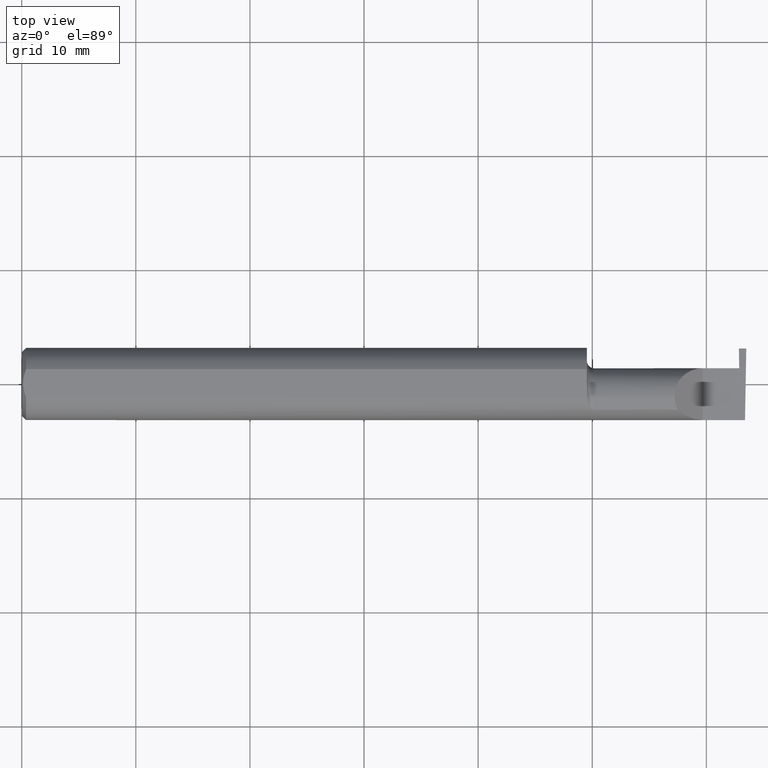
[diagram: clean part render]
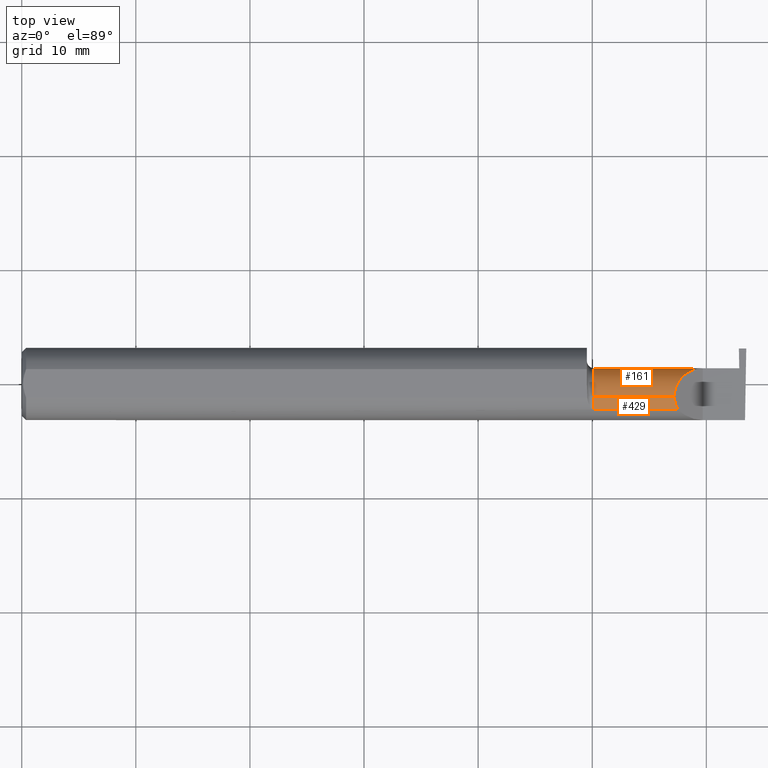
[diagram: same view with one multi-face feature highlighted, each face labeled with its STEP entity id]
A machine part, top view. The highlighted faces form ONE feature: a constant-radius fillet chain: 2 tangent blend faces with common blend radius 2.4892 mm. The faces share edges in the B-rep.
Their STEP definitions:
[1] entity #429 (Cylinder):
#8 = EDGE_CURVE ( 'NONE', #333, #769, #682, .T. ) ;
#13 = EDGE_CURVE ( 'NONE', #578, #333, #172, .T. ) ;
#23 = CARTESIAN_POINT ( 'NONE',  ( 2.263628075281542529, -0.09015216647662421812, 0.08637192471845822617 ) ) ;
#68 = VERTEX_POINT ( 'NONE', #767 ) ;
#108 = EDGE_LOOP ( 'NONE', ( #732, #601, #126, #434 ) ) ;
#126 = ORIENTED_EDGE ( 'NONE', *, *, #622, .F. ) ;
#142 = AXIS2_PLACEMENT_3D ( 'NONE', #439, #443, #683 ) ;
#143 = CARTESIAN_POINT ( 'NONE',  ( 2.252000000000000668, -0.06008937020638503712, 0.09799999999999998990 ) ) ;
#144 = CARTESIAN_POINT ( 'NONE',  ( 1.974999999999999867, -0.04385000000000001397, 0.09800000000000000377 ) ) ;
#156 = CARTESIAN_POINT ( 'NONE',  ( 2.263628075281542529, -0.09015216647662421812, 0.08637192471845822617 ) ) ;
#168 = CARTESIAN_POINT ( 'NONE',  ( 2.224749999999999783, -0.09015216647662482874, 0.08637192471845768493 ) ) ;
#169 = AXIS2_PLACEMENT_3D ( 'NONE', #179, #308, #671 ) ;
#172 =( BOUNDED_CURVE ( )  B_SPLINE_CURVE ( 3, ( #23, #750, #143, #387 ),
 .UNSPECIFIED., .F., .T. ) 
 B_SPLINE_CURVE_WITH_KNOTS ( ( 4, 4 ),
 ( 5.791092865617133434, 6.283185307179586232 ),
 .UNSPECIFIED. ) 
 CURVE ( )  GEOMETRIC_REPRESENTATION_ITEM ( )  RATIONAL_B_SPLINE_CURVE ( ( 1.000000000000000000, 0.9799220177372784946, 0.9799220177372784946, 1.000000000000000000 ) ) 
 REPRESENTATION_ITEM ( '' )  );
#176 = DIRECTION ( 'NONE',  ( 1.000000000000000000, 0.000000000000000000, 0.000000000000000000 ) ) ;
#179 = CARTESIAN_POINT ( 'NONE',  ( 1.974999999999999867, -0.04385000000000001397, 0.000000000000000000 ) ) ;
#251 = CARTESIAN_POINT ( 'NONE',  ( 1.949999999999999956, -0.04385000000000001397, 0.09800000000000000377 ) ) ;
#308 = DIRECTION ( 'NONE',  ( -1.000000000000000000, -0.000000000000000000, -0.000000000000000000 ) ) ;
#333 = VERTEX_POINT ( 'NONE', #451 ) ;
#347 = LINE ( 'NONE', #168, #634 ) ;
#387 = CARTESIAN_POINT ( 'NONE',  ( 2.252000000000000668, -0.04385000000000001397, 0.09800000000000000377 ) ) ;
#418 = CIRCLE ( 'NONE', #169, 0.09800000000000000377 ) ;
#429 = ADVANCED_FACE ( 'NONE', ( #633 ), #752, .T. ) ;
#434 = ORIENTED_EDGE ( 'NONE', *, *, #561, .T. ) ;
#439 = CARTESIAN_POINT ( 'NONE',  ( 1.949999999999999956, -0.04385000000000001397, 0.000000000000000000 ) ) ;
#443 = DIRECTION ( 'NONE',  ( -1.000000000000000000, -0.000000000000000000, -0.000000000000000000 ) ) ;
#451 = CARTESIAN_POINT ( 'NONE',  ( 2.252000000000000668, -0.04385000000000001397, 0.09800000000000000377 ) ) ;
#495 = VECTOR ( 'NONE', #670, 39.37007874015748143 ) ;
#561 = EDGE_CURVE ( 'NONE', #68, #578, #347, .T. ) ;
#578 = VERTEX_POINT ( 'NONE', #156 ) ;
#601 = ORIENTED_EDGE ( 'NONE', *, *, #8, .T. ) ;
#622 = EDGE_CURVE ( 'NONE', #68, #769, #418, .T. ) ;
#633 = FACE_OUTER_BOUND ( 'NONE', #108, .T. ) ;
#634 = VECTOR ( 'NONE', #176, 39.37007874015748143 ) ;
#670 = DIRECTION ( 'NONE',  ( -1.000000000000000000, -0.000000000000000000, -0.000000000000000000 ) ) ;
#671 = DIRECTION ( 'NONE',  ( 0.000000000000000000, 0.000000000000000000, 1.000000000000000000 ) ) ;
#682 = LINE ( 'NONE', #251, #495 ) ;
#683 = DIRECTION ( 'NONE',  ( 0.000000000000000000, 0.000000000000000000, 1.000000000000000000 ) ) ;
#732 = ORIENTED_EDGE ( 'NONE', *, *, #13, .T. ) ;
#750 = CARTESIAN_POINT ( 'NONE',  ( 2.255955442396118560, -0.07583965973232772995, 0.09404455760388213958 ) ) ;
#752 = CYLINDRICAL_SURFACE ( 'NONE', #142, 0.09800000000000000377 ) ;
#767 = CARTESIAN_POINT ( 'NONE',  ( 1.974999999999999867, -0.09015216647662482874, 0.08637192471845768493 ) ) ;
#769 = VERTEX_POINT ( 'NONE', #144 ) ;
[2] entity #161 (Cylinder):
#3 = CARTESIAN_POINT ( 'NONE',  ( 2.479353376795600639, -0.04385000000000004172, -0.09799999999999998990 ) ) ;
#8 = EDGE_CURVE ( 'NONE', #333, #769, #682, .T. ) ;
#34 = ORIENTED_EDGE ( 'NONE', *, *, #266, .F. ) ;
#58 = VECTOR ( 'NONE', #219, 39.37007874015748143 ) ;
#66 = DIRECTION ( 'NONE',  ( -1.000000000000000000, -0.000000000000000000, -0.000000000000000000 ) ) ;
#73 = EDGE_LOOP ( 'NONE', ( #117, #397, #784, #97, #205, #529, #426, #34 ) ) ;
#97 = ORIENTED_EDGE ( 'NONE', *, *, #8, .F. ) ;
#115 = EDGE_CURVE ( 'NONE', #182, #248, #643, .T. ) ;
#117 = ORIENTED_EDGE ( 'NONE', *, *, #514, .F. ) ;
#134 = CARTESIAN_POINT ( 'NONE',  ( 2.474499999999999922, -0.04385000000000001397, 0.000000000000000000 ) ) ;
#144 = CARTESIAN_POINT ( 'NONE',  ( 1.974999999999999867, -0.04385000000000001397, 0.09800000000000000377 ) ) ;
#161 = ADVANCED_FACE ( 'NONE', ( #395 ), #577, .T. ) ;
#182 = VERTEX_POINT ( 'NONE', #303 ) ;
#187 = AXIS2_PLACEMENT_3D ( 'NONE', #450, #563, #692 ) ;
#191 = CARTESIAN_POINT ( 'NONE',  ( 2.474831655309489786, 0.05414656493488109734, -0.008143655253979618230 ) ) ;
#192 = EDGE_CURVE ( 'NONE', #640, #647, #247, .T. ) ;
#195 = CARTESIAN_POINT ( 'NONE',  ( 2.475482208140546536, 0.05115612325138354372, -0.02403823089877875352 ) ) ;
#203 = CARTESIAN_POINT ( 'NONE',  ( 2.252000000000000668, 0.01355707088743670317, 0.09799999999999996214 ) ) ;
#205 = ORIENTED_EDGE ( 'NONE', *, *, #236, .T. ) ;
#216 = EDGE_CURVE ( 'NONE', #248, #465, #771, .T. ) ;
#219 = DIRECTION ( 'NONE',  ( 1.000000000000000000, 0.000000000000000000, 0.000000000000000000 ) ) ;
#236 = EDGE_CURVE ( 'NONE', #333, #182, #566, .T. ) ;
#244 = CARTESIAN_POINT ( 'NONE',  ( 2.475160734290017928, 0.05314349951121612181, -0.01618353831829611247 ) ) ;
#245 = VERTEX_POINT ( 'NONE', #374 ) ;
#247 = LINE ( 'NONE', #538, #324 ) ;
#248 = VERTEX_POINT ( 'NONE', #488 ) ;
#251 = CARTESIAN_POINT ( 'NONE',  ( 1.949999999999999956, -0.04385000000000001397, 0.09800000000000000377 ) ) ;
#258 = DIRECTION ( 'NONE',  ( 0.000000000000000000, 0.000000000000000000, 1.000000000000000000 ) ) ;
#266 = EDGE_CURVE ( 'NONE', #245, #465, #545, .T. ) ;
#303 = CARTESIAN_POINT ( 'NONE',  ( 2.350000000000000089, 0.05414999999999988572, 1.836970198721028825E-17 ) ) ;
#324 = VECTOR ( 'NONE', #484, 39.37007874015748143 ) ;
#333 = VERTEX_POINT ( 'NONE', #451 ) ;
#339 = CARTESIAN_POINT ( 'NONE',  ( 2.479353376795600639, -0.04385000000000004172, -0.09799999999999998990 ) ) ;
#345 = CARTESIAN_POINT ( 'NONE',  ( 1.949999999999999956, -0.04385000000000001397, 0.000000000000000000 ) ) ;
#348 = AXIS2_PLACEMENT_3D ( 'NONE', #134, #66, #258 ) ;
#374 = CARTESIAN_POINT ( 'NONE',  ( 2.475482208140546536, 0.05115612325138354372, -0.02403823089877875352 ) ) ;
#395 = FACE_OUTER_BOUND ( 'NONE', #73, .T. ) ;
#397 = ORIENTED_EDGE ( 'NONE', *, *, #192, .T. ) ;
#425 = CARTESIAN_POINT ( 'NONE',  ( 2.474499999999999922, 0.05414999123725555696, -4.144270477499288293E-05 ) ) ;
#426 = ORIENTED_EDGE ( 'NONE', *, *, #216, .T. ) ;
#450 = CARTESIAN_POINT ( 'NONE',  ( 1.974999999999999867, -0.04385000000000001397, 0.000000000000000000 ) ) ;
#451 = CARTESIAN_POINT ( 'NONE',  ( 2.252000000000000668, -0.04385000000000001397, 0.09800000000000000377 ) ) ;
#456 = DIRECTION ( 'NONE',  ( 0.000000000000000000, 0.000000000000000000, 1.000000000000000000 ) ) ;
#465 = VERTEX_POINT ( 'NONE', #518 ) ;
#481 = CARTESIAN_POINT ( 'NONE',  ( 2.292592929112563738, 0.05415000000000004532, 0.05740707088743669112 ) ) ;
#484 = DIRECTION ( 'NONE',  ( -1.000000000000000000, -0.000000000000000000, -0.000000000000000000 ) ) ;
#488 = CARTESIAN_POINT ( 'NONE',  ( 2.474499999999999922, 0.05415000000000001062, 6.735576903354862878E-17 ) ) ;
#495 = VECTOR ( 'NONE', #670, 39.37007874015748143 ) ;
#514 = EDGE_CURVE ( 'NONE', #640, #245, #591, .T. ) ;
#518 = CARTESIAN_POINT ( 'NONE',  ( 2.474499999999999922, 0.05414999123725555696, -4.144270477499288293E-05 ) ) ;
#524 = CARTESIAN_POINT ( 'NONE',  ( 2.479354867654527617, 0.002850604310161387097, -0.09800000000000001765 ) ) ;
#529 = ORIENTED_EDGE ( 'NONE', *, *, #115, .T. ) ;
#538 = CARTESIAN_POINT ( 'NONE',  ( 1.949999999999999956, -0.04385000000000000703, -0.09800000000000000377 ) ) ;
#545 =( BOUNDED_CURVE ( )  B_SPLINE_CURVE ( 3, ( #195, #244, #191, #425 ),
 .UNSPECIFIED., .F., .F. ) 
 B_SPLINE_CURVE_WITH_KNOTS ( ( 4, 4 ),
 ( 4.463962699426427427, 4.711356644242684411 ),
 .UNSPECIFIED. ) 
 CURVE ( )  GEOMETRIC_REPRESENTATION_ITEM ( )  RATIONAL_B_SPLINE_CURVE ( ( 1.000000000000000000, 0.9949061863229001768, 0.9949061863229001768, 1.000000000000000000 ) ) 
 REPRESENTATION_ITEM ( '' )  );
#563 = DIRECTION ( 'NONE',  ( -1.000000000000000000, -0.000000000000000000, -0.000000000000000000 ) ) ;
#566 =( BOUNDED_CURVE ( )  B_SPLINE_CURVE ( 3, ( #660, #203, #481, #729 ),
 .UNSPECIFIED., .F., .F. ) 
 B_SPLINE_CURVE_WITH_KNOTS ( ( 4, 4 ),
 ( 0.000000000000000000, 1.570796326794896558 ),
 .UNSPECIFIED. ) 
 CURVE ( )  GEOMETRIC_REPRESENTATION_ITEM ( )  RATIONAL_B_SPLINE_CURVE ( ( 1.000000000000000000, 0.8047378541243649375, 0.8047378541243649375, 1.000000000000000000 ) ) 
 REPRESENTATION_ITEM ( '' )  );
#577 = CYLINDRICAL_SURFACE ( 'NONE', #600, 0.09800000000000000377 ) ;
#581 = DIRECTION ( 'NONE',  ( -1.000000000000000000, -0.000000000000000000, -0.000000000000000000 ) ) ;
#591 =( BOUNDED_CURVE ( )  B_SPLINE_CURVE ( 3, ( #339, #524, #772, #642 ),
 .UNSPECIFIED., .F., .F. ) 
 B_SPLINE_CURVE_WITH_KNOTS ( ( 4, 4 ),
 ( 3.140983202202990654, 4.463962699426423875 ),
 .UNSPECIFIED. ) 
 CURVE ( )  GEOMETRIC_REPRESENTATION_ITEM ( )  RATIONAL_B_SPLINE_CURVE ( ( 1.000000000000000000, 0.8593853101475599221, 0.8593853101475599221, 1.000000000000000000 ) ) 
 REPRESENTATION_ITEM ( '' )  );
#600 = AXIS2_PLACEMENT_3D ( 'NONE', #345, #581, #456 ) ;
#623 = CIRCLE ( 'NONE', #187, 0.09800000000000000377 ) ;
#640 = VERTEX_POINT ( 'NONE', #3 ) ;
#642 = CARTESIAN_POINT ( 'NONE',  ( 2.475482208140546536, 0.05115612325138354372, -0.02403823089877875352 ) ) ;
#643 = LINE ( 'NONE', #754, #58 ) ;
#647 = VERTEX_POINT ( 'NONE', #733 ) ;
#660 = CARTESIAN_POINT ( 'NONE',  ( 2.252000000000000668, -0.04385000000000001397, 0.09800000000000000377 ) ) ;
#670 = DIRECTION ( 'NONE',  ( -1.000000000000000000, -0.000000000000000000, -0.000000000000000000 ) ) ;
#682 = LINE ( 'NONE', #251, #495 ) ;
#692 = DIRECTION ( 'NONE',  ( 0.000000000000000000, 0.000000000000000000, 1.000000000000000000 ) ) ;
#729 = CARTESIAN_POINT ( 'NONE',  ( 2.350000000000000089, 0.05414999999999988572, 1.836970198721028825E-17 ) ) ;
#733 = CARTESIAN_POINT ( 'NONE',  ( 1.974999999999999867, -0.04385000000000000009, -0.09800000000000000377 ) ) ;
#754 = CARTESIAN_POINT ( 'NONE',  ( 1.949999999999999956, 0.05414999999999998981, 6.735557395310438818E-17 ) ) ;
#769 = VERTEX_POINT ( 'NONE', #144 ) ;
#771 = CIRCLE ( 'NONE', #348, 0.09800000000000000377 ) ;
#772 = CARTESIAN_POINT ( 'NONE',  ( 2.477853341463135184, 0.03970102213383049083, -0.06931214282740386090 ) ) ;
#775 = EDGE_CURVE ( 'NONE', #769, #647, #623, .T. ) ;
#784 = ORIENTED_EDGE ( 'NONE', *, *, #775, .F. ) ;